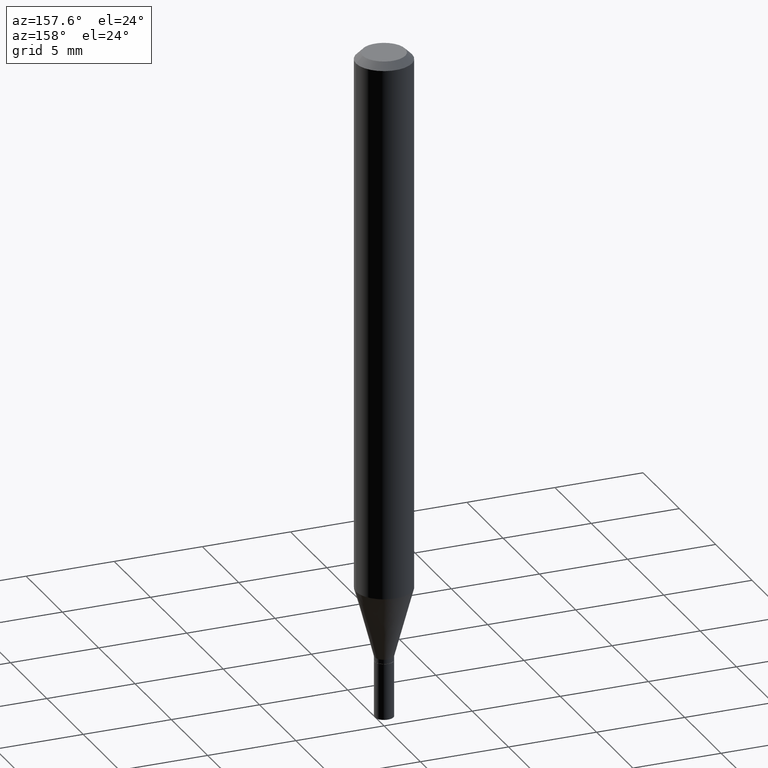
[diagram: clean part render]
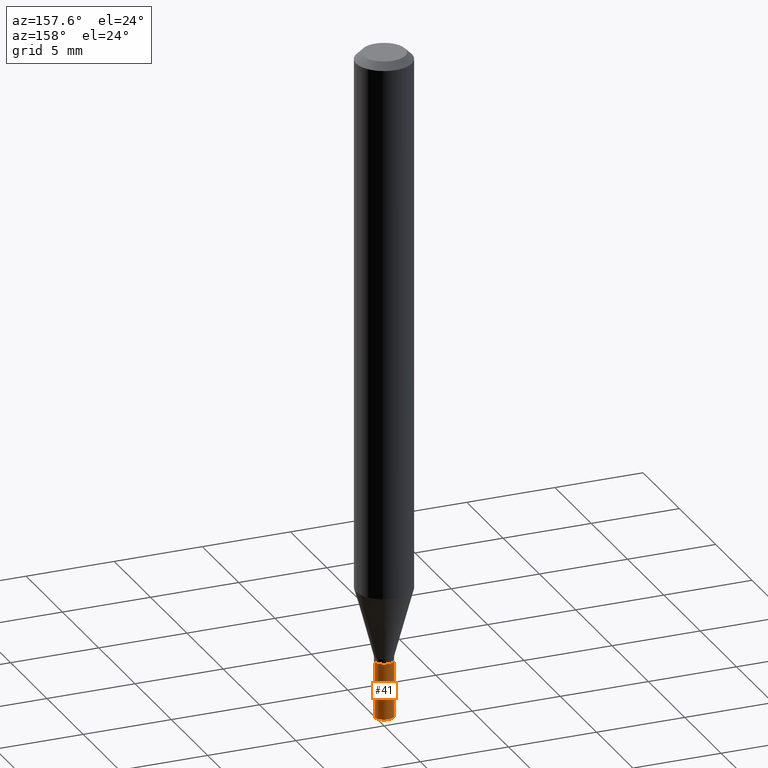
[diagram: same view with one face highlighted and labeled with its STEP entity id]
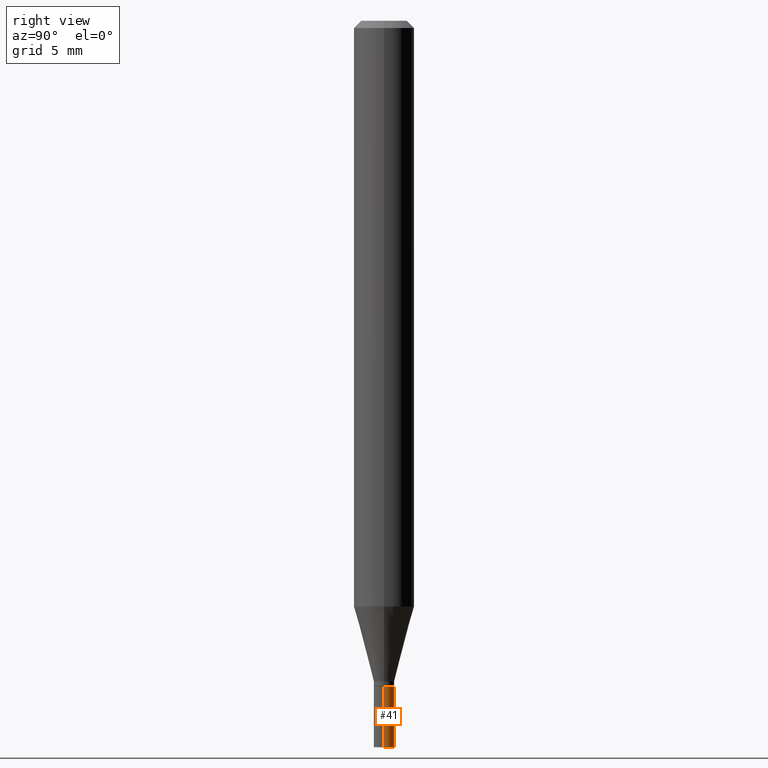
[diagram: same view with one face highlighted and labeled with its STEP entity id]
A machine part, auxiliary view. The second image highlights one B-rep face of the part: STEP entity #41.
A second angle (right view) of the same face is appended — the face is thin or edge-on in the first view.
In plain terms, the highlighted cylindrical surface (edge-blend (fillet) strip) has radius 0.5334 mm, axis along (-0, 0, 1).
Its self-contained STEP definition (entity closure, byte-faithful):
#20 = VERTEX_POINT ( 'NONE', #353 ) ;
#23 = DIRECTION ( 'NONE',  ( -2.445468806185136877E-29, 3.491481338843145188E-15, 1.000000000000000000 ) ) ;
#26 = CARTESIAN_POINT ( 'NONE',  ( 0.02100000000000000477, -5.383864224496130787E-15, -1.500000000000000222 ) ) ;
#41 = ADVANCED_FACE ( 'NONE', ( #430 ), #107, .T. ) ;
#56 = DIRECTION ( 'NONE',  ( 1.000000000000000000, -6.982962677686284854E-15, 0.000000000000000000 ) ) ;
#81 = CARTESIAN_POINT ( 'NONE',  ( 3.360074139698378339E-29, -4.797295359570482711E-15, -1.374000000000000110 ) ) ;
#87 = EDGE_CURVE ( 'NONE', #356, #462, #116, .T. ) ;
#99 = CARTESIAN_POINT ( 'NONE',  ( 0.02100000000000000477, -4.943937575801894533E-15, -1.374000000000000110 ) ) ;
#107 = CYLINDRICAL_SURFACE ( 'NONE', #122, 0.02100000000000000477 ) ;
#116 = CIRCLE ( 'NONE', #379, 0.02100000000000000477 ) ;
#122 = AXIS2_PLACEMENT_3D ( 'NONE', #317, #394, #251 ) ;
#151 = DIRECTION ( 'NONE',  ( -2.445468806185136597E-29, 3.491481338843145583E-15, 1.000000000000000000 ) ) ;
#162 = ORIENTED_EDGE ( 'NONE', *, *, #458, .F. ) ;
#170 = ORIENTED_EDGE ( 'NONE', *, *, #288, .F. ) ;
#175 = ORIENTED_EDGE ( 'NONE', *, *, #225, .T. ) ;
#177 = CARTESIAN_POINT ( 'NONE',  ( 0.02100000000000000477, -1.466422162314116246E-16, 1.023997122917146650E-30 ) ) ;
#223 = DIRECTION ( 'NONE',  ( 1.000000000000000000, -6.982962677686284854E-15, 0.000000000000000000 ) ) ;
#225 = EDGE_CURVE ( 'NONE', #462, #20, #247, .T. ) ;
#229 = CARTESIAN_POINT ( 'NONE',  ( 3.668203209277704895E-29, -5.237222008264718177E-15, -1.500000000000000222 ) ) ;
#234 = EDGE_LOOP ( 'NONE', ( #396, #175, #162, #170 ) ) ;
#247 = LINE ( 'NONE', #455, #407 ) ;
#251 = DIRECTION ( 'NONE',  ( 1.000000000000000000, -6.982962677686265922E-15, 4.876176775795935232E-29 ) ) ;
#286 = CARTESIAN_POINT ( 'NONE',  ( -0.02100000000000000477, -4.868044709407979667E-15, -1.500000000000000222 ) ) ;
#288 = EDGE_CURVE ( 'NONE', #356, #362, #351, .T. ) ;
#303 = CIRCLE ( 'NONE', #335, 0.02100000000000000477 ) ;
#317 = CARTESIAN_POINT ( 'NONE',  ( 0.000000000000000000, 0.000000000000000000, 0.000000000000000000 ) ) ;
#326 = DIRECTION ( 'NONE',  ( -2.445468806185136597E-29, 3.491481338843145583E-15, 1.000000000000000000 ) ) ;
#335 = AXIS2_PLACEMENT_3D ( 'NONE', #81, #326, #223 ) ;
#351 = LINE ( 'NONE', #177, #408 ) ;
#353 = CARTESIAN_POINT ( 'NONE',  ( -0.02100000000000000477, -4.868044709407979667E-15, -1.374000000000000110 ) ) ;
#356 = VERTEX_POINT ( 'NONE', #26 ) ;
#362 = VERTEX_POINT ( 'NONE', #99 ) ;
#379 = AXIS2_PLACEMENT_3D ( 'NONE', #229, #151, #56 ) ;
#386 = DIRECTION ( 'NONE',  ( -2.445468806185136877E-29, 3.491481338843145188E-15, 1.000000000000000000 ) ) ;
#394 = DIRECTION ( 'NONE',  ( -2.445468806185136597E-29, 3.491481338843145583E-15, 1.000000000000000000 ) ) ;
#396 = ORIENTED_EDGE ( 'NONE', *, *, #87, .T. ) ;
#407 = VECTOR ( 'NONE', #23, 39.37007874015748143 ) ;
#408 = VECTOR ( 'NONE', #386, 39.37007874015748143 ) ;
#430 = FACE_OUTER_BOUND ( 'NONE', #234, .T. ) ;
#455 = CARTESIAN_POINT ( 'NONE',  ( -0.02100000000000000477, 1.492139745096210730E-16, -1.032976368953530510E-30 ) ) ;
#458 = EDGE_CURVE ( 'NONE', #362, #20, #303, .T. ) ;
#462 = VERTEX_POINT ( 'NONE', #286 ) ;